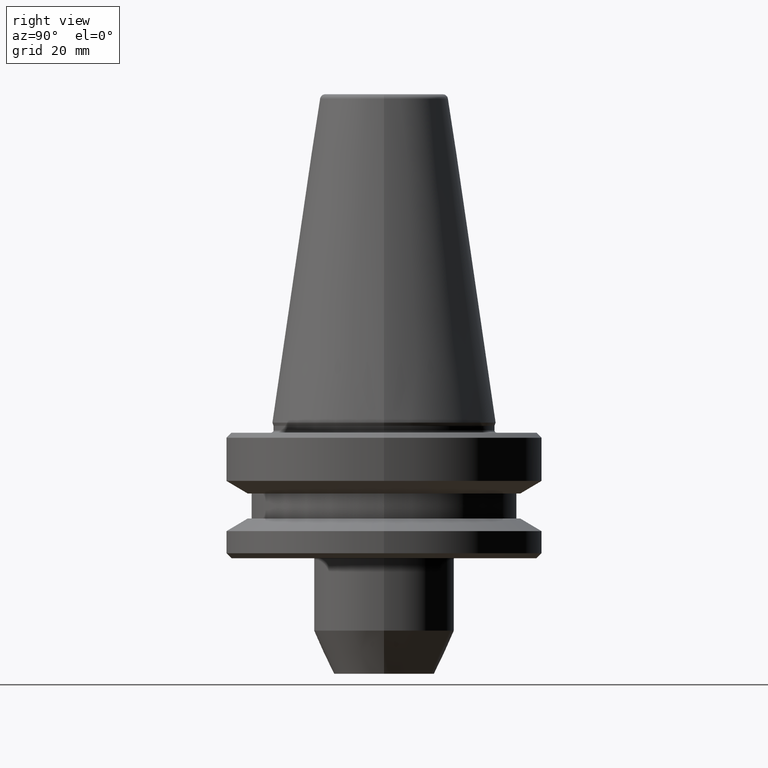
[diagram: clean part render]
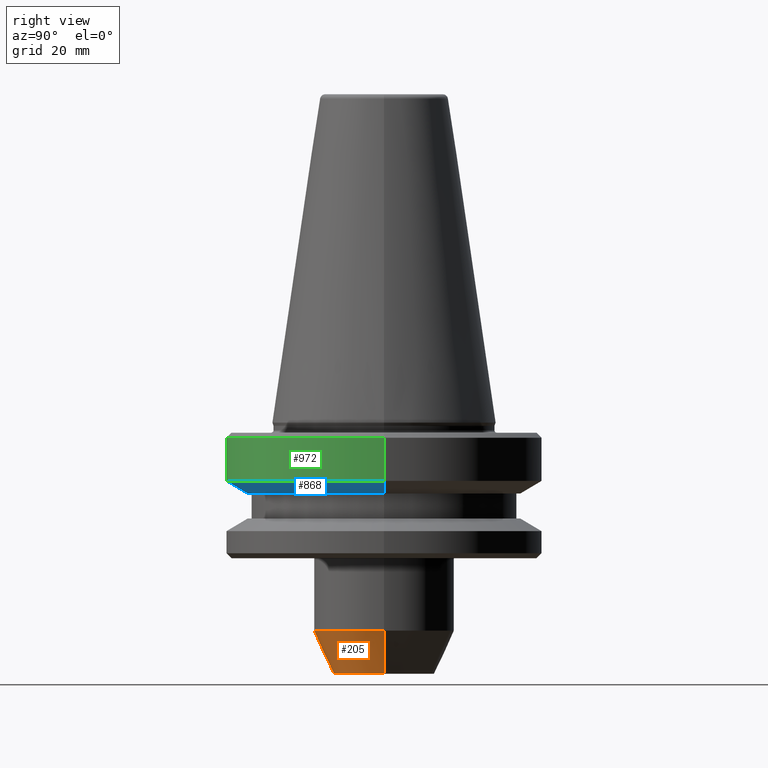
[diagram: same view with three faces highlighted in distinct colors, each labeled with its STEP entity id]
A machine part, right view with three faces highlighted in distinct colors.
Their STEP definitions:

[orange] entity #205 — the highlighted conical surface has half-angle 25 deg.
#53 = CARTESIAN_POINT ( 'NONE',  ( 0.0000000000000000000, 0.0000000000000000000, -50.00000000010052000 ) ) ;
#115 = LINE ( 'NONE', #339, #960 ) ;
#195 = DIRECTION ( 'NONE',  ( 0.4226182617407107700, 0.0000000000000000000, 0.9063077870366446100 ) ) ;
#205 = ADVANCED_FACE ( 'NONE', ( #504 ), #377, .T. ) ;
#209 = EDGE_CURVE ( 'NONE', #847, #260, #613, .T. ) ;
#232 = ORIENTED_EDGE ( 'NONE', *, *, #209, .T. ) ;
#260 = VERTEX_POINT ( 'NONE', #513 ) ;
#271 = AXIS2_PLACEMENT_3D ( 'NONE', #568, #800, #808 ) ;
#319 = VERTEX_POINT ( 'NONE', #976 ) ;
#339 = CARTESIAN_POINT ( 'NONE',  ( 9.999999999998399500, 0.0000000000000000000, -50.00000000010052000 ) ) ;
#352 = DIRECTION ( 'NONE',  ( -0.0000000000000000000, -0.0000000000000000000, 1.000000000000000000 ) ) ;
#377 = CONICAL_SURFACE ( 'NONE', #804, 9.999999999998399500, 0.4363323129985949300 ) ;
#391 = CARTESIAN_POINT ( 'NONE',  ( 0.0000000000000000000, 0.0000000000000000000, -41.42197231806243700 ) ) ;
#415 = ORIENTED_EDGE ( 'NONE', *, *, #440, .T. ) ;
#440 = EDGE_CURVE ( 'NONE', #260, #758, #115, .T. ) ;
#489 = CARTESIAN_POINT ( 'NONE',  ( -9.999999999998399500, 1.224646799147157200E-015, -50.00000000010052000 ) ) ;
#502 = CIRCLE ( 'NONE', #704, 13.99999999999845800 ) ;
#504 = FACE_OUTER_BOUND ( 'NONE', #668, .T. ) ;
#513 = CARTESIAN_POINT ( 'NONE',  ( 9.999999999998399500, 0.0000000000000000000, -50.00000000010052000 ) ) ;
#568 = CARTESIAN_POINT ( 'NONE',  ( 0.0000000000000000000, 0.0000000000000000000, -50.00000000010052000 ) ) ;
#605 = CARTESIAN_POINT ( 'NONE',  ( -9.999999999998399500, 1.469576158976631500E-015, -50.00000000010052000 ) ) ;
#613 = CIRCLE ( 'NONE', #271, 9.999999999998399500 ) ;
#653 = DIRECTION ( 'NONE',  ( -0.0000000000000000000, -0.0000000000000000000, 1.000000000000000000 ) ) ;
#668 = EDGE_LOOP ( 'NONE', ( #716, #232, #415, #954 ) ) ;
#704 = AXIS2_PLACEMENT_3D ( 'NONE', #391, #653, #776 ) ;
#716 = ORIENTED_EDGE ( 'NONE', *, *, #726, .F. ) ;
#719 = EDGE_CURVE ( 'NONE', #319, #758, #502, .T. ) ;
#726 = EDGE_CURVE ( 'NONE', #847, #319, #942, .T. ) ;
#730 = VECTOR ( 'NONE', #833, 1000.000000000000100 ) ;
#756 = DIRECTION ( 'NONE',  ( 1.000000000000000000, 0.0000000000000000000, 0.0000000000000000000 ) ) ;
#758 = VERTEX_POINT ( 'NONE', #790 ) ;
#776 = DIRECTION ( 'NONE',  ( 1.000000000000000000, 0.0000000000000000000, 0.0000000000000000000 ) ) ;
#790 = CARTESIAN_POINT ( 'NONE',  ( 13.99999999999845800, 0.0000000000000000000, -41.42197231806243700 ) ) ;
#800 = DIRECTION ( 'NONE',  ( -0.0000000000000000000, -0.0000000000000000000, 1.000000000000000000 ) ) ;
#804 = AXIS2_PLACEMENT_3D ( 'NONE', #53, #352, #756 ) ;
#808 = DIRECTION ( 'NONE',  ( 1.000000000000000000, 0.0000000000000000000, 0.0000000000000000000 ) ) ;
#833 = DIRECTION ( 'NONE',  ( -0.4226182617407107700, 5.175581015019797400E-017, 0.9063077870366446100 ) ) ;
#847 = VERTEX_POINT ( 'NONE', #605 ) ;
#942 = LINE ( 'NONE', #489, #730 ) ;
#954 = ORIENTED_EDGE ( 'NONE', *, *, #719, .F. ) ;
#960 = VECTOR ( 'NONE', #195, 1000.000000000000100 ) ;
#976 = CARTESIAN_POINT ( 'NONE',  ( -13.99999999999845800, 1.714505518806105900E-015, -41.42197231806243700 ) ) ;

[blue] entity #868 — the highlighted conical surface has half-angle 60 deg.
#3 = CARTESIAN_POINT ( 'NONE',  ( 31.49999999999986100, 0.0000000000000000000, -11.59985799368423700 ) ) ;
#65 = ORIENTED_EDGE ( 'NONE', *, *, #523, .T. ) ;
#80 = LINE ( 'NONE', #622, #547 ) ;
#117 = AXIS2_PLACEMENT_3D ( 'NONE', #733, #331, #458 ) ;
#121 = ORIENTED_EDGE ( 'NONE', *, *, #476, .F. ) ;
#126 = AXIS2_PLACEMENT_3D ( 'NONE', #921, #593, #941 ) ;
#127 = VECTOR ( 'NONE', #929, 1000.000000000000100 ) ;
#163 = FACE_OUTER_BOUND ( 'NONE', #282, .T. ) ;
#168 = LINE ( 'NONE', #949, #127 ) ;
#172 = CARTESIAN_POINT ( 'NONE',  ( -27.16962701892278200, 3.592478546794634700E-015, -14.10000000000055600 ) ) ;
#239 = EDGE_CURVE ( 'NONE', #397, #680, #168, .T. ) ;
#282 = EDGE_LOOP ( 'NONE', ( #121, #65, #518, #984 ) ) ;
#330 = AXIS2_PLACEMENT_3D ( 'NONE', #895, #710, #368 ) ;
#331 = DIRECTION ( 'NONE',  ( -0.0000000000000000000, -0.0000000000000000000, 1.000000000000000000 ) ) ;
#368 = DIRECTION ( 'NONE',  ( 1.000000000000000000, 0.0000000000000000000, 0.0000000000000000000 ) ) ;
#397 = VERTEX_POINT ( 'NONE', #988 ) ;
#418 = EDGE_CURVE ( 'NONE', #679, #680, #829, .T. ) ;
#432 = CARTESIAN_POINT ( 'NONE',  ( -31.49999999999986100, 3.857637417314145300E-015, -11.59985799368423700 ) ) ;
#439 = CIRCLE ( 'NONE', #126, 27.16962701892278200 ) ;
#458 = DIRECTION ( 'NONE',  ( 1.000000000000000000, 0.0000000000000000000, 0.0000000000000000000 ) ) ;
#474 = CONICAL_SURFACE ( 'NONE', #330, 27.16962701892278200, 1.047197551196600300 ) ;
#476 = EDGE_CURVE ( 'NONE', #509, #679, #80, .T. ) ;
#509 = VERTEX_POINT ( 'NONE', #172 ) ;
#518 = ORIENTED_EDGE ( 'NONE', *, *, #239, .T. ) ;
#523 = EDGE_CURVE ( 'NONE', #509, #397, #439, .T. ) ;
#547 = VECTOR ( 'NONE', #610, 1000.000000000000100 ) ;
#593 = DIRECTION ( 'NONE',  ( -0.0000000000000000000, -0.0000000000000000000, 1.000000000000000000 ) ) ;
#610 = DIRECTION ( 'NONE',  ( -0.8660254037844398200, 1.060575238724908400E-016, 0.4999999999999977200 ) ) ;
#622 = CARTESIAN_POINT ( 'NONE',  ( -27.16962701892278200, 3.327319676275122900E-015, -14.10000000000055600 ) ) ;
#679 = VERTEX_POINT ( 'NONE', #432 ) ;
#680 = VERTEX_POINT ( 'NONE', #3 ) ;
#710 = DIRECTION ( 'NONE',  ( -0.0000000000000000000, -0.0000000000000000000, 1.000000000000000000 ) ) ;
#733 = CARTESIAN_POINT ( 'NONE',  ( 0.0000000000000000000, 0.0000000000000000000, -11.59985799368423700 ) ) ;
#829 = CIRCLE ( 'NONE', #117, 31.49999999999986100 ) ;
#868 = ADVANCED_FACE ( 'NONE', ( #163 ), #474, .T. ) ;
#895 = CARTESIAN_POINT ( 'NONE',  ( 0.0000000000000000000, 0.0000000000000000000, -14.10000000000055600 ) ) ;
#921 = CARTESIAN_POINT ( 'NONE',  ( 0.0000000000000000000, 0.0000000000000000000, -14.10000000000055600 ) ) ;
#929 = DIRECTION ( 'NONE',  ( 0.8660254037844398200, 0.0000000000000000000, 0.4999999999999977200 ) ) ;
#941 = DIRECTION ( 'NONE',  ( 1.000000000000000000, 0.0000000000000000000, 0.0000000000000000000 ) ) ;
#949 = CARTESIAN_POINT ( 'NONE',  ( 27.16962701892278200, 0.0000000000000000000, -14.10000000000055600 ) ) ;
#984 = ORIENTED_EDGE ( 'NONE', *, *, #418, .F. ) ;
#988 = CARTESIAN_POINT ( 'NONE',  ( 27.16962701892278200, 0.0000000000000000000, -14.10000000000055600 ) ) ;

[green] entity #972 — the highlighted cylindrical surface (partial cylindrical patch) has radius 31.5 mm, axis along (-0, -0, 1).
#3 = CARTESIAN_POINT ( 'NONE',  ( 31.49999999999986100, 0.0000000000000000000, -11.59985799368423700 ) ) ;
#22 = EDGE_CURVE ( 'NONE', #679, #608, #25, .T. ) ;
#25 = LINE ( 'NONE', #258, #659 ) ;
#41 = VERTEX_POINT ( 'NONE', #765 ) ;
#55 = ORIENTED_EDGE ( 'NONE', *, *, #582, .F. ) ;
#69 = DIRECTION ( 'NONE',  ( -0.0000000000000000000, -0.0000000000000000000, 1.000000000000000000 ) ) ;
#117 = AXIS2_PLACEMENT_3D ( 'NONE', #733, #331, #458 ) ;
#169 = DIRECTION ( 'NONE',  ( 1.000000000000000000, 0.0000000000000000000, 0.0000000000000000000 ) ) ;
#214 = EDGE_CURVE ( 'NONE', #680, #41, #494, .T. ) ;
#258 = CARTESIAN_POINT ( 'NONE',  ( -31.49999999999986100, 3.857637417314145300E-015, 119.1156155462287700 ) ) ;
#331 = DIRECTION ( 'NONE',  ( -0.0000000000000000000, -0.0000000000000000000, 1.000000000000000000 ) ) ;
#418 = EDGE_CURVE ( 'NONE', #679, #680, #829, .T. ) ;
#432 = CARTESIAN_POINT ( 'NONE',  ( -31.49999999999986100, 3.857637417314145300E-015, -11.59985799368423700 ) ) ;
#449 = FACE_OUTER_BOUND ( 'NONE', #791, .T. ) ;
#458 = DIRECTION ( 'NONE',  ( 1.000000000000000000, 0.0000000000000000000, 0.0000000000000000000 ) ) ;
#494 = LINE ( 'NONE', #965, #826 ) ;
#497 = DIRECTION ( 'NONE',  ( -0.0000000000000000000, -0.0000000000000000000, 1.000000000000000000 ) ) ;
#582 = EDGE_CURVE ( 'NONE', #608, #41, #918, .T. ) ;
#588 = AXIS2_PLACEMENT_3D ( 'NONE', #637, #497, #865 ) ;
#592 = DIRECTION ( 'NONE',  ( -0.0000000000000000000, -0.0000000000000000000, 1.000000000000000000 ) ) ;
#608 = VERTEX_POINT ( 'NONE', #983 ) ;
#637 = CARTESIAN_POINT ( 'NONE',  ( 0.0000000000000000000, 0.0000000000000000000, 119.1156155462287700 ) ) ;
#659 = VECTOR ( 'NONE', #69, 1000.000000000000000 ) ;
#677 = ORIENTED_EDGE ( 'NONE', *, *, #22, .F. ) ;
#679 = VERTEX_POINT ( 'NONE', #432 ) ;
#680 = VERTEX_POINT ( 'NONE', #3 ) ;
#733 = CARTESIAN_POINT ( 'NONE',  ( 0.0000000000000000000, 0.0000000000000000000, -11.59985799368423700 ) ) ;
#765 = CARTESIAN_POINT ( 'NONE',  ( 31.49999999999986100, 0.0000000000000000000, -3.000000000000779800 ) ) ;
#791 = EDGE_LOOP ( 'NONE', ( #677, #904, #876, #55 ) ) ;
#798 = DIRECTION ( 'NONE',  ( -0.0000000000000000000, -0.0000000000000000000, 1.000000000000000000 ) ) ;
#826 = VECTOR ( 'NONE', #798, 1000.000000000000000 ) ;
#829 = CIRCLE ( 'NONE', #117, 31.49999999999986100 ) ;
#865 = DIRECTION ( 'NONE',  ( 1.000000000000000000, 0.0000000000000000000, 0.0000000000000000000 ) ) ;
#874 = AXIS2_PLACEMENT_3D ( 'NONE', #917, #592, #169 ) ;
#876 = ORIENTED_EDGE ( 'NONE', *, *, #214, .T. ) ;
#904 = ORIENTED_EDGE ( 'NONE', *, *, #418, .T. ) ;
#917 = CARTESIAN_POINT ( 'NONE',  ( 0.0000000000000000000, 0.0000000000000000000, -3.000000000000779800 ) ) ;
#918 = CIRCLE ( 'NONE', #874, 31.49999999999986100 ) ;
#965 = CARTESIAN_POINT ( 'NONE',  ( 31.49999999999986100, 0.0000000000000000000, 119.1156155462287700 ) ) ;
#972 = ADVANCED_FACE ( 'NONE', ( #449 ), #1000, .T. ) ;
#983 = CARTESIAN_POINT ( 'NONE',  ( -31.49999999999986100, 3.857637417314145300E-015, -3.000000000000779800 ) ) ;
#1000 = CYLINDRICAL_SURFACE ( 'NONE', #588, 31.49999999999986100 ) ;